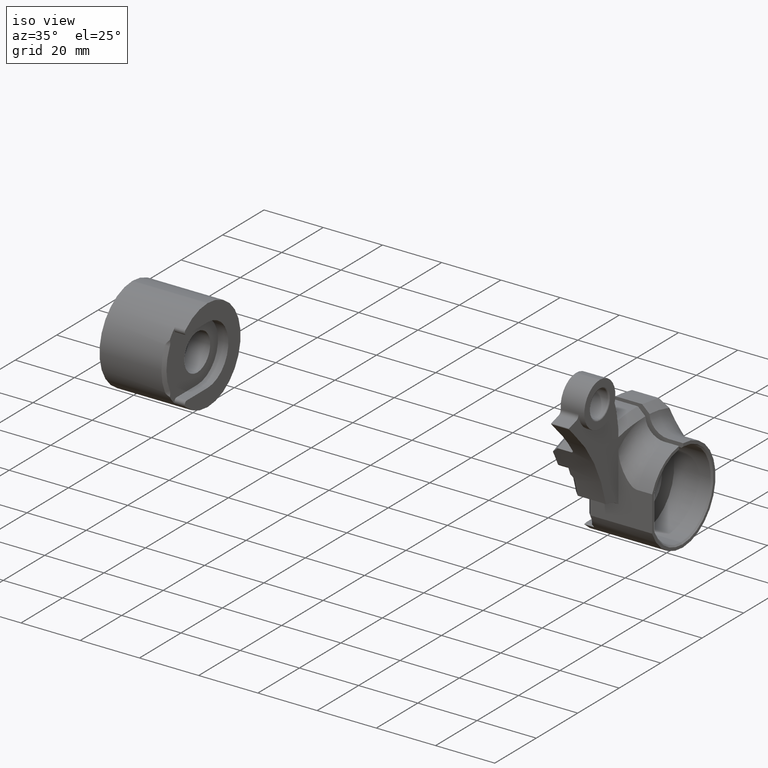
[diagram: clean part render]
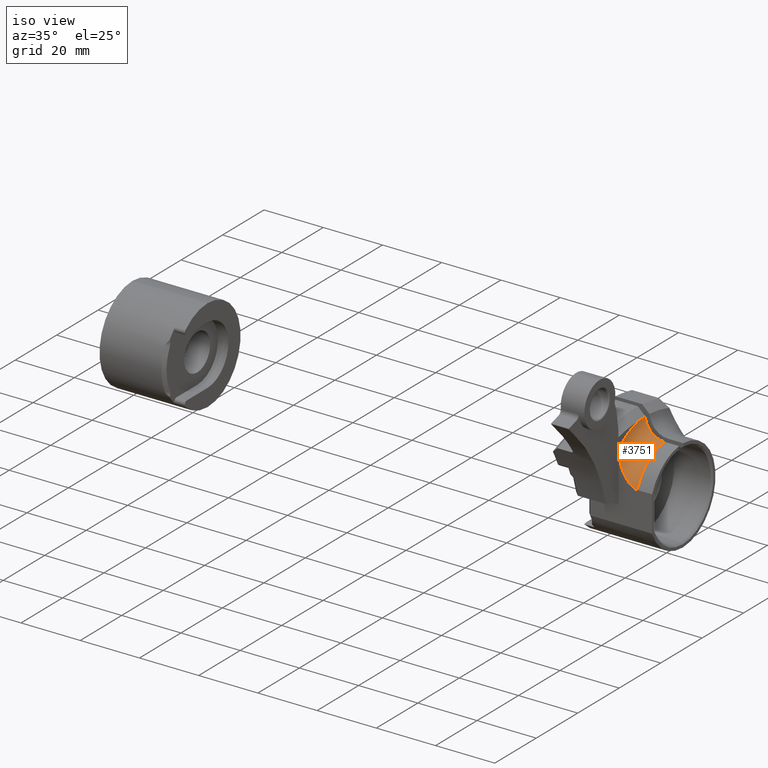
[diagram: same view with one face highlighted and labeled with its STEP entity id]
A machine part, iso view. The second image highlights one B-rep face of the part: STEP entity #3751.
In plain terms, the highlighted toroidal blend (fillet) surface has major radius 22.225 mm and minor (blend) radius 6.35 mm.
Its self-contained STEP definition (entity closure, byte-faithful):
#21 = DIRECTION ( 'NONE',  ( 0.0000000000000000000, 0.0000000000000000000, -1.000000000000000000 ) ) ;
#66 = CARTESIAN_POINT ( 'NONE',  ( 17.25693680069680300, -1.700000000000003500, 16.57758231053875500 ) ) ;
#69 = CARTESIAN_POINT ( 'NONE',  ( 19.26732517226061600, -14.70000000000000300, 6.232838257371804000 ) ) ;
#87 = CARTESIAN_POINT ( 'NONE',  ( 14.76543322060173000, -14.70000000000000500, 12.32484905134951500 ) ) ;
#250 = VERTEX_POINT ( 'NONE', #2484 ) ;
#370 = CARTESIAN_POINT ( 'NONE',  ( 14.08816095195014000, -1.700000000000003700, 21.02859015807582200 ) ) ;
#373 = CARTESIAN_POINT ( 'NONE',  ( 14.00865874969439200, -1.700000000000003500, 21.82740055721281200 ) ) ;
#384 = CARTESIAN_POINT ( 'NONE',  ( 18.35840960639235700, -1.700000000000003500, 16.09260572947858100 ) ) ;
#388 = CARTESIAN_POINT ( 'NONE',  ( 18.89698426190717500, -14.70000000000000300, 6.424146489251141300 ) ) ;
#393 = DIRECTION ( 'NONE',  ( 0.0000000000000000000, 0.0000000000000000000, -1.000000000000000000 ) ) ;
#395 = TOROIDAL_SURFACE ( 'NONE', #4183, 22.22500000000000100, 6.349999999999999600 ) ;
#408 = CARTESIAN_POINT ( 'NONE',  ( 14.16071990442742900, -14.70000000000000500, 14.46222770763470900 ) ) ;
#421 = CARTESIAN_POINT ( 'NONE',  ( 14.00000000000000000, -3.788409173072777100, 21.78182307020620500 ) ) ;
#508 = FACE_OUTER_BOUND ( 'NONE', #3116, .T. ) ;
#685 = DIRECTION ( 'NONE',  ( 1.000000000000000000, 0.0000000000000000000, 0.0000000000000000000 ) ) ;
#715 = CARTESIAN_POINT ( 'NONE',  ( 14.41386307794761900, -1.700000000000003300, 19.86220240484591300 ) ) ;
#716 = CIRCLE ( 'NONE', #2427, 15.87500000000000000 ) ;
#729 = CARTESIAN_POINT ( 'NONE',  ( 19.54181744474777500, -1.700000000000003300, 15.82256351750374500 ) ) ;
#733 = CARTESIAN_POINT ( 'NONE',  ( 18.32235866781052600, -14.70000000000000300, 6.817864503130886400 ) ) ;
#737 = ORIENTED_EDGE ( 'NONE', *, *, #862, .F. ) ;
#752 = CARTESIAN_POINT ( 'NONE',  ( 13.99999999999999800, -14.70000000000000300, 16.66915189804208500 ) ) ;
#823 = VERTEX_POINT ( 'NONE', #2771 ) ;
#855 = VERTEX_POINT ( 'NONE', #373 ) ;
#862 = EDGE_CURVE ( 'NONE', #1644, #823, #3124, .T. ) ;
#1043 = CARTESIAN_POINT ( 'NONE',  ( 14.94869272461108000, -1.700000000000003500, 18.78525038298428700 ) ) ;
#1063 = CARTESIAN_POINT ( 'NONE',  ( 20.35000000000000100, -1.700000000000003500, 15.78371391656602500 ) ) ;
#1067 = CARTESIAN_POINT ( 'NONE',  ( 17.70695773413453000, -14.70000000000000100, 7.379693105798060600 ) ) ;
#1179 = EDGE_CURVE ( 'NONE', #823, #1628, #1739, .T. ) ;
#1305 = ORIENTED_EDGE ( 'NONE', *, *, #1179, .F. ) ;
#1378 = CARTESIAN_POINT ( 'NONE',  ( 15.42477681524497700, -1.700000000000003500, 18.13235472273066100 ) ) ;
#1401 = CARTESIAN_POINT ( 'NONE',  ( 16.80605689494858600, -14.70000000000000300, 8.430587837085072400 ) ) ;
#1620 = EDGE_CURVE ( 'NONE', #855, #250, #2614, .T. ) ;
#1628 = VERTEX_POINT ( 'NONE', #2064 ) ;
#1644 = VERTEX_POINT ( 'NONE', #3406 ) ;
#1721 = CARTESIAN_POINT ( 'NONE',  ( 15.82751122592162000, -1.700000000000003700, 17.68145750809198100 ) ) ;
#1739 = CIRCLE ( 'NONE', #2468, 22.22500000000000100 ) ;
#1741 = CARTESIAN_POINT ( 'NONE',  ( 15.90231820432419800, -14.70000000000000100, 9.825916870620504900 ) ) ;
#1753 = CARTESIAN_POINT ( 'NONE',  ( 14.00865874969439200, -1.700000000000003500, 21.82740055721281200 ) ) ;
#2003 = DIRECTION ( 'NONE',  ( -1.000000000000000000, -0.0000000000000000000, -0.0000000000000000000 ) ) ;
#2016 = B_SPLINE_CURVE_WITH_KNOTS ( 'NONE', 3,
 ( #1753, #2087, #421, #2753 ),
 .UNSPECIFIED., .F., .F.,
 ( 4, 4 ),
 ( 0.0000000000000000000, 1.000000000000000000 ),
 .UNSPECIFIED. ) ;
#2036 = CARTESIAN_POINT ( 'NONE',  ( 14.00865874969439200, -1.700000000000003500, 21.82740055721281200 ) ) ;
#2038 = CARTESIAN_POINT ( 'NONE',  ( 20.35000000000000100, -14.70000000000000100, 5.993798878841371200 ) ) ;
#2048 = CARTESIAN_POINT ( 'NONE',  ( 16.57634840427370200, -1.700000000000003300, 17.01725636558930400 ) ) ;
#2051 = CARTESIAN_POINT ( 'NONE',  ( 19.39744770814154500, -14.70000000000000500, 6.178061786401024800 ) ) ;
#2056 = CARTESIAN_POINT ( 'NONE',  ( 20.35000000000000100, 0.0000000000000000000, 0.0000000000000000000 ) ) ;
#2064 = CARTESIAN_POINT ( 'NONE',  ( 13.99999999999999800, -4.831507923564515700, 21.69348188245799800 ) ) ;
#2068 = CARTESIAN_POINT ( 'NONE',  ( 15.16681230071410800, -14.70000000000000100, 11.30022015933637800 ) ) ;
#2087 = CARTESIAN_POINT ( 'NONE',  ( 14.00445274136499700, -2.745242048543266900, 21.82669511723094000 ) ) ;
#2380 = CARTESIAN_POINT ( 'NONE',  ( 17.61570692026189600, -1.700000000000003300, 16.39198737645181200 ) ) ;
#2387 = CARTESIAN_POINT ( 'NONE',  ( 19.01763959788320700, -14.70000000000000300, 6.355705882577663800 ) ) ;
#2393 = DIRECTION ( 'NONE',  ( 1.000000000000000000, 0.0000000000000000000, 0.0000000000000000000 ) ) ;
#2403 = CARTESIAN_POINT ( 'NONE',  ( 14.59107662874829700, -14.69999999999999900, 12.85141306014999300 ) ) ;
#2427 = AXIS2_PLACEMENT_3D ( 'NONE', #2666, #685, #3000 ) ;
#2468 = AXIS2_PLACEMENT_3D ( 'NONE', #3981, #2003, #21 ) ;
#2481 = ORIENTED_EDGE ( 'NONE', *, *, #2583, .F. ) ;
#2484 = CARTESIAN_POINT ( 'NONE',  ( 20.35000000000000100, -1.700000000000003500, 15.78371391656602500 ) ) ;
#2583 = EDGE_CURVE ( 'NONE', #250, #1644, #716, .T. ) ;
#2614 = B_SPLINE_CURVE_WITH_KNOTS ( 'NONE', 3,
 ( #2036, #3350, #370, #2697, #715, #3023, #1043, #3369, #1378, #3703, #1721, #4033, #2048, #66, #2380, #384, #2712, #729, #3037, #1063 ),
 .UNSPECIFIED., .F., .F.,
 ( 4, 2, 2, 2, 2, 2, 2, 2, 2, 4 ),
 ( 0.0003292206608714034100, 0.001530448428871207900, 0.002731676196871012300, 0.003932903964870816700, 0.004533517848870715800, 0.005134131732870615900, 0.006335359500870408100, 0.007536587268870198600, 0.008737815036869989200, 0.009939042804869780600 ),
 .UNSPECIFIED. ) ;
#2666 = CARTESIAN_POINT ( 'NONE',  ( 20.35000000000000100, 0.0000000000000000000, 0.0000000000000000000 ) ) ;
#2691 = EDGE_CURVE ( 'NONE', #855, #1628, #2016, .T. ) ;
#2697 = CARTESIAN_POINT ( 'NONE',  ( 14.27928211203571100, -1.700000000000003100, 20.24879132298938700 ) ) ;
#2712 = CARTESIAN_POINT ( 'NONE',  ( 18.74633222202135100, -1.700000000000003100, 15.97731088551604700 ) ) ;
#2720 = CARTESIAN_POINT ( 'NONE',  ( 18.54507186582144800, -14.70000000000000300, 6.646290854602183300 ) ) ;
#2735 = CARTESIAN_POINT ( 'NONE',  ( 13.99999999999999600, -14.70000000000000100, 15.55417895575283200 ) ) ;
#2753 = CARTESIAN_POINT ( 'NONE',  ( 13.99999999999999800, -4.831507923564515700, 21.69348188245799800 ) ) ;
#2771 = CARTESIAN_POINT ( 'NONE',  ( 13.99999999999999800, -14.70000000000000300, 16.66915189804208500 ) ) ;
#3000 = DIRECTION ( 'NONE',  ( 0.0000000000000000000, 0.0000000000000000000, -1.000000000000000000 ) ) ;
#3023 = CARTESIAN_POINT ( 'NONE',  ( 14.74847989330581500, -1.700000000000003700, 19.13207686826934400 ) ) ;
#3037 = CARTESIAN_POINT ( 'NONE',  ( 19.94378061277328500, -1.700000000000003500, 15.78371391656602200 ) ) ;
#3041 = CARTESIAN_POINT ( 'NONE',  ( 17.90341569603021200, -14.70000000000000100, 7.184624130323971500 ) ) ;
#3116 = EDGE_LOOP ( 'NONE', ( #4131, #3126, #1305, #737, #2481 ) ) ;
#3124 = B_SPLINE_CURVE_WITH_KNOTS ( 'NONE', 3,
 ( #2038, #3710, #4037, #2051, #69, #2387, #388, #2720, #733, #3041, #1067, #3389, #1401, #3727, #1741, #4056, #2068, #87, #2403, #408, #2735, #752 ),
 .UNSPECIFIED., .F., .F.,
 ( 4, 2, 2, 2, 2, 2, 2, 2, 2, 2, 4 ),
 ( 0.0000000000000000000, 0.0008316090981834553700, 0.001247413647275177600, 0.001663218196366899900, 0.002494827294550344400, 0.003326436392733789000, 0.004989654589100678400, 0.006652872785467567500, 0.008316090981834460900, 0.009979309178201351700, 0.01330574557093513200 ),
 .UNSPECIFIED. ) ;
#3126 = ORIENTED_EDGE ( 'NONE', *, *, #2691, .T. ) ;
#3350 = CARTESIAN_POINT ( 'NONE',  ( 14.02964152195008500, -1.700000000000003100, 21.42479863108986400 ) ) ;
#3369 = CARTESIAN_POINT ( 'NONE',  ( 15.29892709765030100, -1.700000000000003700, 18.29267460613219100 ) ) ;
#3389 = CARTESIAN_POINT ( 'NONE',  ( 17.14524672608400000, -14.70000000000000500, 7.989747710284214900 ) ) ;
#3406 = CARTESIAN_POINT ( 'NONE',  ( 20.35000000000000100, -14.70000000000000100, 5.993798878841371200 ) ) ;
#3703 = CARTESIAN_POINT ( 'NONE',  ( 15.68899211254664800, -1.700000000000004000, 17.82694911504897200 ) ) ;
#3710 = CARTESIAN_POINT ( 'NONE',  ( 20.06767093177530700, -14.69999999999999800, 5.993798878841370300 ) ) ;
#3727 = CARTESIAN_POINT ( 'NONE',  ( 16.18271220693920400, -14.70000000000000100, 9.351018440105647800 ) ) ;
#3751 = ADVANCED_FACE ( 'NONE', ( #508 ), #395, .F. ) ;
#3981 = CARTESIAN_POINT ( 'NONE',  ( 13.99999999999999800, 0.0000000000000000000, 0.0000000000000000000 ) ) ;
#4033 = CARTESIAN_POINT ( 'NONE',  ( 16.26187309166171600, -1.700000000000003100, 17.26613278978766500 ) ) ;
#4037 = CARTESIAN_POINT ( 'NONE',  ( 19.79496634803877700, -14.69999999999999800, 6.043615256582910400 ) ) ;
#4056 = CARTESIAN_POINT ( 'NONE',  ( 15.39423713578929800, -14.70000000000000100, 10.80045618014800500 ) ) ;
#4131 = ORIENTED_EDGE ( 'NONE', *, *, #1620, .F. ) ;
#4183 = AXIS2_PLACEMENT_3D ( 'NONE', #2056, #2393, #393 ) ;